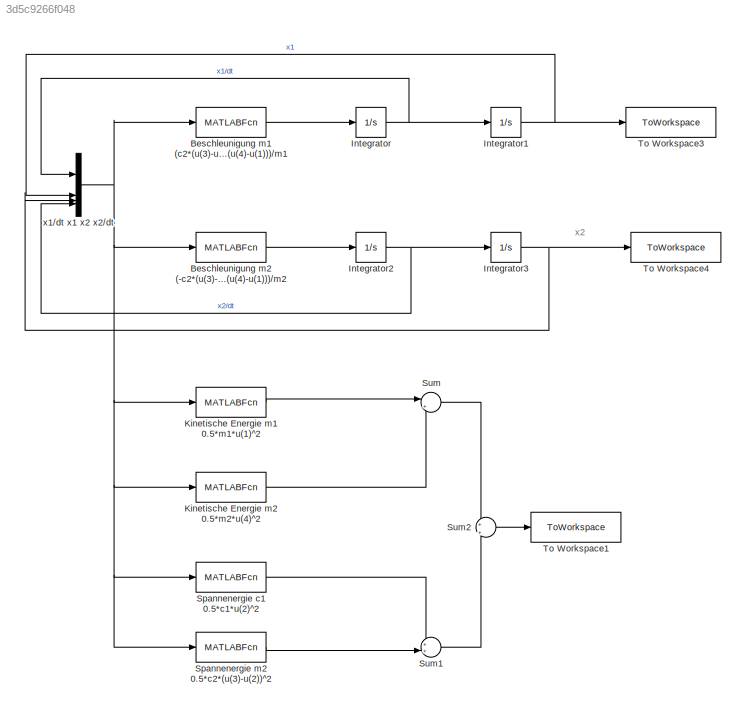
MODEL slx_3d5c9266f048
KIND model
CONFIG AbsTol = 1e-13
CONFIG EnableMultiTasking = off
CONFIG FixedStep = auto
CONFIG MaxStep = auto
CONFIG MinStep = auto
CONFIG RelTol = 1e-13
CONFIG SampleTimeConstraint = Unconstrained
CONFIG SolverName = VariableStepAuto
CONFIG StartTime = 0.0
CONFIG StopTime = 10
BLOCK [MATLABFcn] Beschleunigung m1 (c2*(u(3)-u(2))-c1*u(2)+d2*(u(4)-u(1)))//m1
  MATLABFcn = (c2*(u(3)-u(2))-c1*u(2)+d2*(u(4)-u(1)))/m1
BLOCK [MATLABFcn] Beschleunigung m2 (-c2*(u(3)-u(2))-d2*(u(4)-u(1)))//m2
  MATLABFcn = (-c2*(u(3)-u(2))-d2*(u(4)-u(1)))/m2
BLOCK [Integrator] Integrator
BLOCK [Integrator] Integrator1
  InitialCondition = x1_0
BLOCK [Integrator] Integrator2
BLOCK [Integrator] Integrator3
  InitialCondition = x2_0
BLOCK [MATLABFcn] Kinetische Energie m1 0.5*m1*u(1)^2
  MATLABFcn = 0.5*m1*u(1)^2
BLOCK [MATLABFcn] Kinetische Energie m2 0.5*m2*u(4)^2
  MATLABFcn = 0.5*m2*u(4)^2
BLOCK [MATLABFcn] Spannenergie c1 0.5*c1*u(2)^2
  MATLABFcn = 0.5*c1*u(2)^2
BLOCK [MATLABFcn] Spannenergie m2 0.5*c2*(u(3)-u(2))^2
  MATLABFcn = 0.5*c2*(u(3)-u(2))^2
BLOCK [Sum] Sum
  Inputs = |++
BLOCK [Sum] Sum1
  Inputs = ++|
BLOCK [Sum] Sum2
  Inputs = +|+
BLOCK [ToWorkspace] To Workspace1
  FixptAsFi = on
  MaxDataPoints = inf
  SampleTime = -1
  SaveFormat = Timeseries
  VariableName = E_ges
BLOCK [ToWorkspace] To Workspace3
  FixptAsFi = on
  MaxDataPoints = inf
  SampleTime = -1
  SaveFormat = Timeseries
  VariableName = x1
BLOCK [ToWorkspace] To Workspace4
  FixptAsFi = on
  MaxDataPoints = inf
  SampleTime = -1
  SaveFormat = Timeseries
  VariableName = x2
BLOCK [Mux] x1//dt x1 x2 x2//dt
  DisplayOption = bar
ANNOTATION (root): x2
LINE Beschleunigung m1 (c2*(u(3)-u(2))-c1*u(2)+d2*(u(4)-u(1)))//m1:1 -> Integrator:1
LINE Beschleunigung m2 (-c2*(u(3)-u(2))-d2*(u(4)-u(1)))//m2:1 -> Integrator2:1
NET Integrator1:1 -> To Workspace3:1, x1//dt x1 x2 x2//dt:2
NET Integrator2:1 -> Integrator3:1, x1//dt x1 x2 x2//dt:4
NET Integrator3:1 -> To Workspace4:1, x1//dt x1 x2 x2//dt:3
NET Integrator:1 -> Integrator1:1, x1//dt x1 x2 x2//dt:1
LINE Kinetische Energie m1 0.5*m1*u(1)^2:1 -> Sum:1
LINE Kinetische Energie m2 0.5*m2*u(4)^2:1 -> Sum:2
LINE Spannenergie c1 0.5*c1*u(2)^2:1 -> Sum1:1
LINE Spannenergie m2 0.5*c2*(u(3)-u(2))^2:1 -> Sum1:2
LINE Sum1:1 -> Sum2:2
LINE Sum2:1 -> To Workspace1:1
LINE Sum:1 -> Sum2:1
NET x1//dt x1 x2 x2//dt:1 -> Beschleunigung m1 (c2*(u(3)-u(2))-c1*u(2)+d2*(u(4)-u(1)))//m1:1, Beschleunigung m2 (-c2*(u(3)-u(2))-d2*(u(4)-u(1)))//m2:1, Kinetische Energie m1 0.5*m1*u(1)^2:1, Kinetische Energie m2 0.5*m2*u(4)^2:1, Spannenergie c1 0.5*c1*u(2)^2:1, Spannenergie m2 0.5*c2*(u(3)-u(2))^2:1
note: NET lines group one-source signal fan-out (src -> all destinations, sorted); 1:1 wires keep LINE
